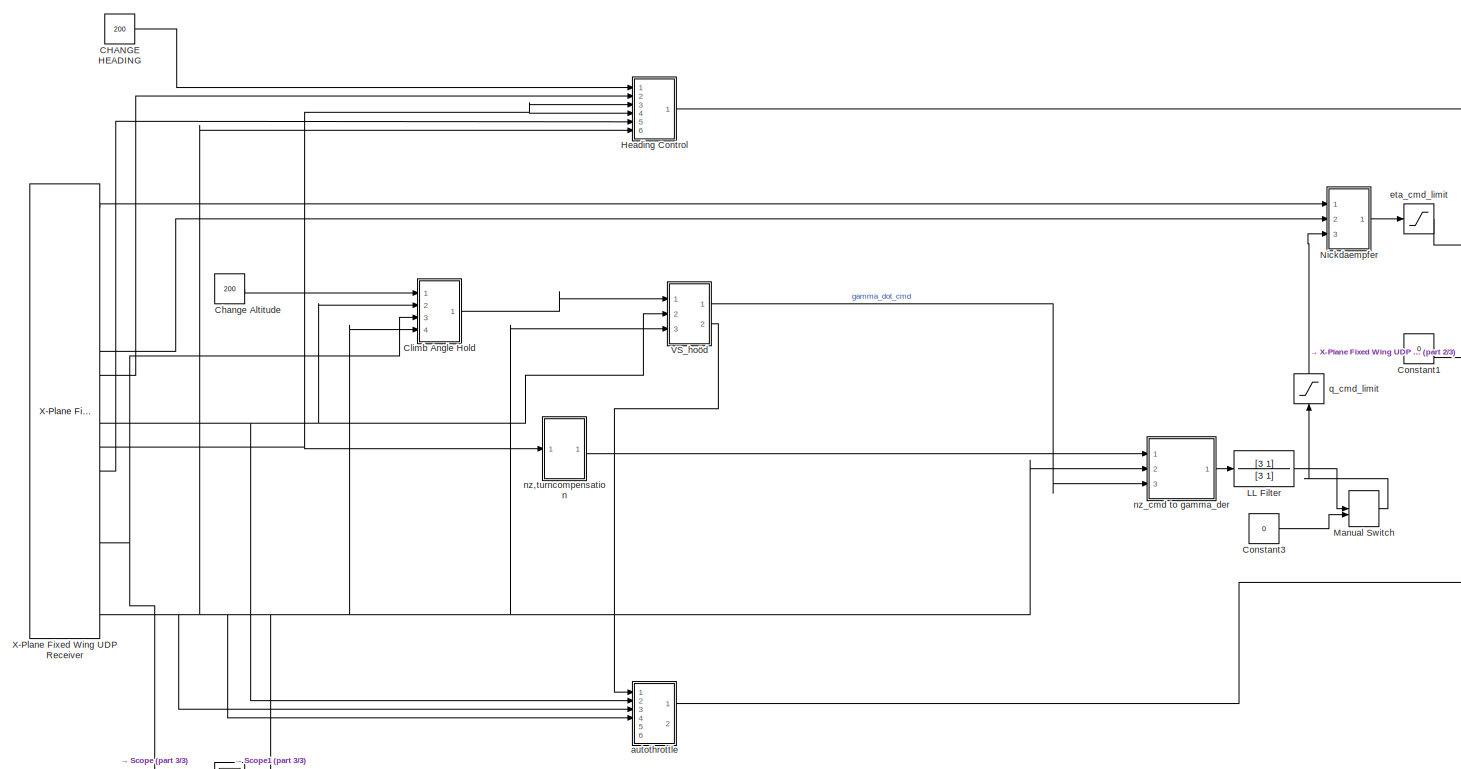
[diagram: root canvas - part 1/3, most of the canvas]
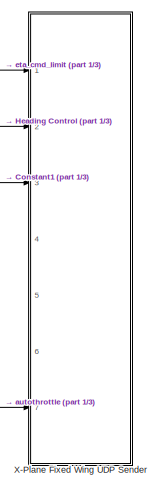
[diagram: root canvas - part 2/3, middle right region]
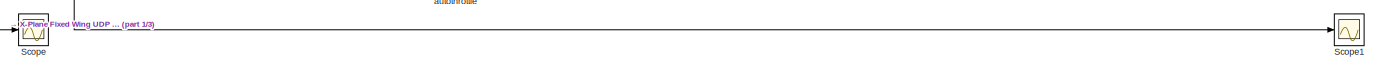
[diagram: root canvas - part 3/3, full width, bottom band]
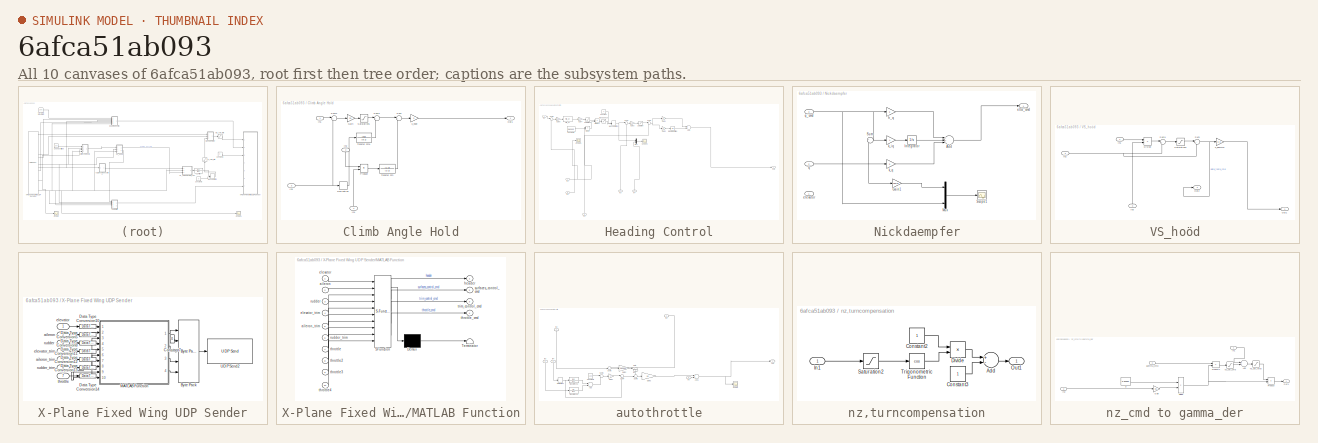
[diagram: thumbnail index - all 10 canvases of the model, root first then tree order]
MODEL slx_6afca51ab093
KIND model
CONFIG AbsTol = auto
CONFIG FixedStep = auto
CONFIG MaxStep = auto
CONFIG MinStep = auto
CONFIG RelTol = 1e-3
CONFIG SampleTimeConstraint = Unconstrained
CONFIG Solver = ode45
CONFIG SolverMode = Auto
CONFIG SolverName = ode45
CONFIG StartTime = 0.0
CONFIG StopTime = 1000.0
BLOCK [Constant] CHANGE HEADING
  Value = 200
BLOCK [Constant] Change Altitude
  Value = 200
BLOCK [SubSystem] Climb Angle Hold
  Ports = [4, 1]
  RequestExecContextInheritance = off
BLOCK [Derivative] Climb Angle Hold/Derivative
BLOCK [Gain] Climb Angle Hold/Gain
  Gain = 20
  OutDataTypeStr = Inherit: Inherit via internal rule
  ParamDataTypeStr = Inherit: Inherit via internal rule
  SaturateOnIntegerOverflow = off
BLOCK [Inport] Climb Angle Hold/In1
  IconDisplay = Port number
BLOCK [Inport] Climb Angle Hold/In2
  IconDisplay = Port number
  Port = 2
BLOCK [Inport] Climb Angle Hold/In3
  IconDisplay = Port number
  Port = 3
BLOCK [Inport] Climb Angle Hold/In4
  IconDisplay = Port number
  Port = 4
BLOCK [Outport] Climb Angle Hold/Out1
  IconDisplay = Port number
BLOCK [Product] Climb Angle Hold/Product
  InputSameDT = off
  OutDataTypeStr = Inherit: Inherit via internal rule
  Ports = [2, 1]
  RndMeth = Floor
  SaturateOnIntegerOverflow = off
BLOCK [Saturate] Climb Angle Hold/Saturation1
  InputPortMap = u0
  LowerLimit = -300
  Ports = [1, 1]
  UpperLimit = 300
BLOCK [Sum] Climb Angle Hold/Sum
  IconShape = round
  InputSameDT = off
  Inputs = |+-
  OutDataTypeStr = Inherit: Inherit via internal rule
  Ports = [2, 1]
  SaturateOnIntegerOverflow = off
BLOCK [Sum] Climb Angle Hold/Sum1
  IconShape = round
  InputSameDT = off
  Inputs = |+-
  OutDataTypeStr = Inherit: Inherit via internal rule
  Ports = [2, 1]
  SaturateOnIntegerOverflow = off
BLOCK [Sum] Climb Angle Hold/Sum2
  IconShape = round
  InputSameDT = off
  Inputs = |+-
  OutDataTypeStr = Inherit: Inherit via internal rule
  Ports = [2, 1]
  SaturateOnIntegerOverflow = off
BLOCK [TransferFcn] Climb Angle Hold/Transfer Fcn
  Denominator = [3 1]
  Numerator = [1 0]
BLOCK [TransferFcn] Climb Angle Hold/Transfer Fcn1
  Denominator = [8 1]
  Numerator = [60]
BLOCK [Gain] Climb Angle Hold/k_hdot
  Gain = 3
  OutDataTypeStr = Inherit: Inherit via internal rule
  ParamDataTypeStr = Inherit: Inherit via internal rule
  SaturateOnIntegerOverflow = off
BLOCK [Constant] Constant1
  Value = 0
BLOCK [Constant] Constant3
  Value = 0
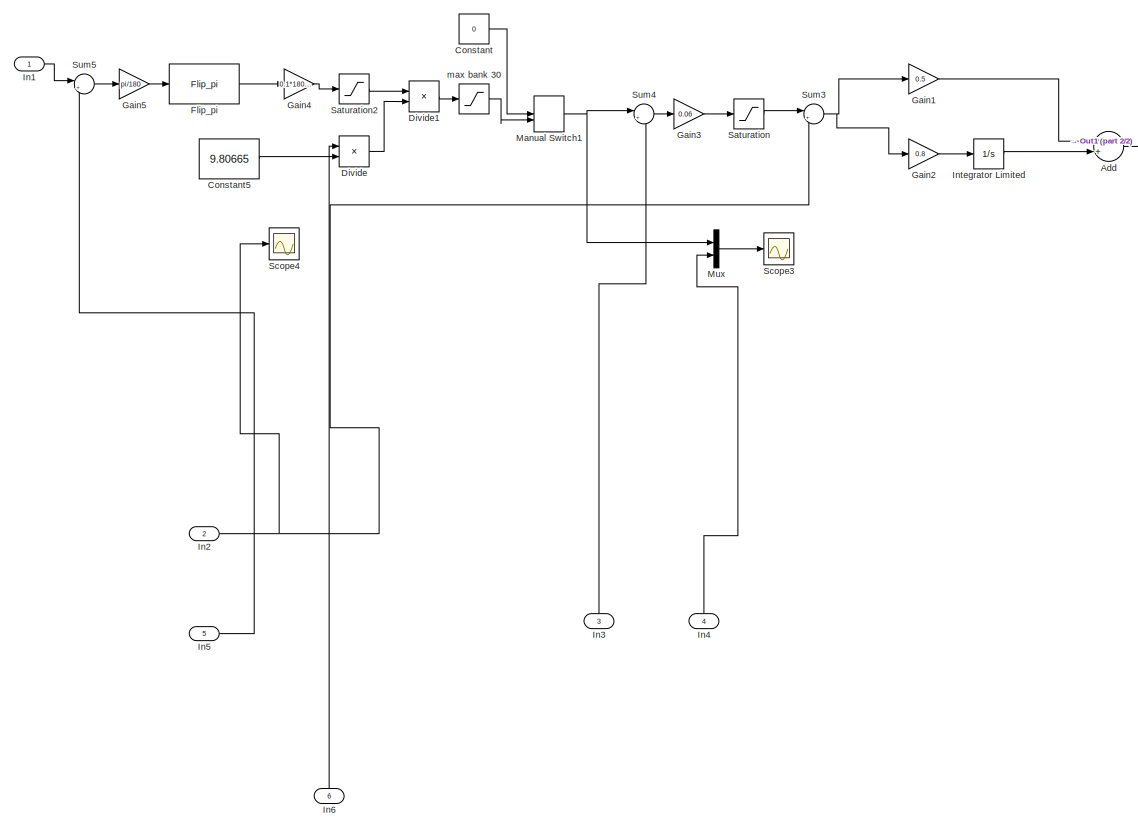
[diagram: Heading Control - part 1/2, left side, full height]
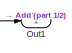
[diagram: Heading Control - part 2/2, middle right region]
BLOCK [SubSystem] Heading Control
  Ports = [6, 1]
  RequestExecContextInheritance = off
BLOCK [Sum] Heading Control/Add
  InputSameDT = off
  OutDataTypeStr = Inherit: Inherit via internal rule
  Ports = [2, 1]
  SaturateOnIntegerOverflow = off
BLOCK [Constant] Heading Control/Constant
  Value = 0
BLOCK [Constant] Heading Control/Constant5
  Value = 9.80665
BLOCK [Product] Heading Control/Divide
  InputSameDT = off
  Inputs = */
  OutDataTypeStr = Inherit: Inherit via internal rule
  Ports = [2, 1]
  RndMeth = Floor
  SaturateOnIntegerOverflow = off
BLOCK [Product] Heading Control/Divide1
  InputSameDT = off
  Inputs = **
  OutDataTypeStr = Inherit: Inherit via internal rule
  Ports = [2, 1]
  RndMeth = Floor
  SaturateOnIntegerOverflow = off
BLOCK [Reference] Heading Control/Flip_pi  REF=FSD_Custom_BASE/Flip_pi
  Ports = [1, 1]
  SourceBlock = FSD_Custom_BASE/Flip_pi
  SourceType = Flip -pi to pi
BLOCK [Gain] Heading Control/Gain1
  Gain = 0.5
  OutDataTypeStr = Inherit: Inherit via internal rule
  ParamDataTypeStr = Inherit: Inherit via internal rule
  SaturateOnIntegerOverflow = off
BLOCK [Gain] Heading Control/Gain2
  Gain = 0.8
  OutDataTypeStr = Inherit: Inherit via internal rule
  ParamDataTypeStr = Inherit: Inherit via internal rule
  SaturateOnIntegerOverflow = off
BLOCK [Gain] Heading Control/Gain3
  Gain = 0.06
  OutDataTypeStr = Inherit: Inherit via internal rule
  ParamDataTypeStr = Inherit: Inherit via internal rule
  SaturateOnIntegerOverflow = off
BLOCK [Gain] Heading Control/Gain4
  Gain = 0.1*180/pi
  OutDataTypeStr = Inherit: Inherit via internal rule
  ParamDataTypeStr = Inherit: Inherit via internal rule
  SaturateOnIntegerOverflow = off
BLOCK [Gain] Heading Control/Gain5
  Gain = pi/180
  OutDataTypeStr = Inherit: Inherit via internal rule
  ParamDataTypeStr = Inherit: Inherit via internal rule
  SaturateOnIntegerOverflow = off
BLOCK [Inport] Heading Control/In1
  IconDisplay = Port number
BLOCK [Inport] Heading Control/In2
  IconDisplay = Port number
  Port = 2
BLOCK [Inport] Heading Control/In3
  IconDisplay = Port number
  Port = 3
BLOCK [Inport] Heading Control/In4
  IconDisplay = Port number
  Port = 4
BLOCK [Inport] Heading Control/In5
  IconDisplay = Port number
  Port = 5
BLOCK [Inport] Heading Control/In6
  IconDisplay = Port number
  Port = 6
BLOCK [Integrator] Heading Control/Integrator Limited
  LimitOutput = on
  LowerSaturationLimit = -0.7
  Ports = [1, 1]
  UpperSaturationLimit = 0.7
BLOCK [ManualSwitch] Heading Control/Manual Switch1
  CurrentSetting = 0
BLOCK [Mux] Heading Control/Mux
  DisplayOption = bar
  Inputs = 2
  Ports = [2, 1]
BLOCK [Outport] Heading Control/Out1
  IconDisplay = Port number
BLOCK [Saturate] Heading Control/Saturation
  InputPortMap = u0
  LowerLimit = -4
  Ports = [1, 1]
  UpperLimit = 4
BLOCK [Saturate] Heading Control/Saturation2
  InputPortMap = u0
  LowerLimit = -3
  Ports = [1, 1]
  UpperLimit = 3
BLOCK [Scope] Heading Control/Scope3
  Floating = off
  NumInputPorts = 1
  Ports = [1]
  SaveName = ScopeData5
  YMax = 50
  YMin = 0
BLOCK [Scope] Heading Control/Scope4
  Floating = off
  NumInputPorts = 1
  Ports = [1]
  SaveName = ScopeData6
  YMax = 0.07
  YMin = -0.01
BLOCK [Sum] Heading Control/Sum3
  IconShape = round
  InputSameDT = off
  Inputs = |+-
  OutDataTypeStr = Inherit: Inherit via internal rule
  Ports = [2, 1]
  SaturateOnIntegerOverflow = off
BLOCK [Sum] Heading Control/Sum4
  IconShape = round
  InputSameDT = off
  Inputs = |+-
  OutDataTypeStr = Inherit: Inherit via internal rule
  Ports = [2, 1]
  SaturateOnIntegerOverflow = off
BLOCK [Sum] Heading Control/Sum5
  IconShape = round
  InputSameDT = off
  Inputs = |+-
  OutDataTypeStr = Inherit: Inherit via internal rule
  Ports = [2, 1]
  SaturateOnIntegerOverflow = off
BLOCK [Saturate] Heading Control/max bank 30
  InputPortMap = u0
  LowerLimit = -30
  Ports = [1, 1]
  UpperLimit = 30
BLOCK [TransferFcn] LL Filter
  Denominator = [3 1]
  Numerator = [3 1]
BLOCK [ManualSwitch] Manual Switch
BLOCK [SubSystem] Nickdaempfer
  Ports = [3, 1]
  RequestExecContextInheritance = off
BLOCK [Sum] Nickdaempfer/Add
  InputSameDT = off
  Inputs = ++-
  OutDataTypeStr = Inherit: Inherit via internal rule
  Ports = [3, 1]
  SaturateOnIntegerOverflow = off
BLOCK [Gain] Nickdaempfer/Gain1
  Gain = 180/pi
  OutDataTypeStr = Inherit: Inherit via internal rule
  ParamDataTypeStr = Inherit: Inherit via internal rule
  SaturateOnIntegerOverflow = off
BLOCK [Integrator] Nickdaempfer/Integrator
  Ports = [1, 1]
BLOCK [Mux] Nickdaempfer/Mux
  DisplayOption = bar
  Ports = [4, 1]
BLOCK [Scope] Nickdaempfer/Scope1
  Floating = off
  NumInputPorts = 1
  Ports = [1]
  TimeRange = 100
  YMax = 3.5
  YMin = -4.5
BLOCK [Sum] Nickdaempfer/Sum
  IconShape = round
  InputSameDT = off
  Inputs = +|-
  OutDataTypeStr = Inherit: Inherit via internal rule
  Ports = [2, 1]
  SaturateOnIntegerOverflow = off
BLOCK [Inport] Nickdaempfer/elevator
  IconDisplay = Port number
BLOCK [Outport] Nickdaempfer/etta_cmd 
  IconDisplay = Port number
BLOCK [Gain] Nickdaempfer/h_q
  Gain = 6
  OutDataTypeStr = Inherit: Inherit via internal rule
  ParamDataTypeStr = Inherit: Inherit via internal rule
  SaturateOnIntegerOverflow = off
BLOCK [Gain] Nickdaempfer/k_iq
  Gain = 4
  OutDataTypeStr = Inherit: Inherit via internal rule
  ParamDataTypeStr = Inherit: Inherit via internal rule
  SaturateOnIntegerOverflow = off
BLOCK [Gain] Nickdaempfer/k_q
  Gain = 3
  OutDataTypeStr = Inherit: Inherit via internal rule
  ParamDataTypeStr = Inherit: Inherit via internal rule
  SaturateOnIntegerOverflow = off
BLOCK [Inport] Nickdaempfer/q
  IconDisplay = Port number
  Port = 2
BLOCK [Inport] Nickdaempfer/q_cmd
  IconDisplay = Port number
  Port = 3
BLOCK [Scope] Scope
  Floating = off
  NumInputPorts = 1
  Ports = [1]
  SaveName = ScopeData2
  YMax = 4500
  YMin = 0
BLOCK [Scope] Scope1
  Floating = off
  NumInputPorts = 1
  Ports = [1]
  SaveName = ScopeData3
  YMax = 130
  YMin = 90
BLOCK [SubSystem] VS_hoöd
  Ports = [3, 2]
  RequestExecContextInheritance = off
BLOCK [Product] VS_hoöd/Divide
  InputSameDT = off
  Inputs = */
  OutDataTypeStr = Inherit: Inherit via internal rule
  Ports = [2, 1]
  RndMeth = Floor
  SaturateOnIntegerOverflow = off
BLOCK [Inport] VS_hoöd/In1
  IconDisplay = Port number
BLOCK [Inport] VS_hoöd/In2
  IconDisplay = Port number
  Port = 2
BLOCK [Inport] VS_hoöd/In3
  IconDisplay = Port number
  Port = 3
BLOCK [Outport] VS_hoöd/Out1
  IconDisplay = Port number
BLOCK [Outport] VS_hoöd/Out2
  IconDisplay = Port number
  Port = 2
BLOCK [Saturate] VS_hoöd/Saturation1
  InputPortMap = u0
  LowerLimit = -15
  Ports = [1, 1]
  UpperLimit = 6
BLOCK [Sum] VS_hoöd/Sum
  IconShape = round
  InputSameDT = off
  Inputs = |+-
  OutDataTypeStr = Inherit: Inherit via internal rule
  Ports = [2, 1]
  SaturateOnIntegerOverflow = off
BLOCK [Sum] VS_hoöd/Sum1
  IconShape = round
  InputSameDT = off
  Inputs = |++
  OutDataTypeStr = Inherit: Inherit via internal rule
  Ports = [2, 1]
  SaturateOnIntegerOverflow = off
BLOCK [Gain] VS_hoöd/k_gamma
  Gain = 0.3
  OutDataTypeStr = Inherit: Inherit via internal rule
  ParamDataTypeStr = Inherit: Inherit via internal rule
  SaturateOnIntegerOverflow = off
BLOCK [Reference] X-Plane Fixed Wing UDP Receiver  REF=X_Plane_Communication_Library/Fixed Wing/X-Plane Fixed Wing UDP Receiver
  Ports = [0, 18]
  SourceBlock = X_Plane_Communication_Library/Fixed Wing/X-Plane Fixed Wing UDP Receiver
  ip_adress = '127.0.0.1'
  port_number = 49004
BLOCK [SubSystem] X-Plane Fixed Wing UDP Sender
  AncestorBlock = X_Plane_Communication_Library/Fixed Wing/X-Plane Fixed Wing UDP Sender
  Ports = [7]
  RequestExecContextInheritance = off
BLOCK [Reference] X-Plane Fixed Wing UDP Sender/Byte Pack  REF=etargetslib/Byte Pack
  Ports = [5, 1]
  SourceBlock = etargetslib/Byte Pack
  SourceType = Byte pack
  byteAlign = 1
  datatypes = {'single','uint8','single','single','single'}
BLOCK [Constant] X-Plane Fixed Wing UDP Sender/Constant7
  OutDataTypeStr = uint8
  Value = 0
BLOCK [DataTypeConversion] X-Plane Fixed Wing UDP Sender/Data Type Conversion10
  OutDataTypeStr = single
  RndMeth = Floor
BLOCK [DataTypeConversion] X-Plane Fixed Wing UDP Sender/Data Type Conversion11
  OutDataTypeStr = single
  RndMeth = Floor
BLOCK [DataTypeConversion] X-Plane Fixed Wing UDP Sender/Data Type Conversion12
  OutDataTypeStr = single
  RndMeth = Floor
BLOCK [DataTypeConversion] X-Plane Fixed Wing UDP Sender/Data Type Conversion13
  OutDataTypeStr = single
  RndMeth = Floor
BLOCK [DataTypeConversion] X-Plane Fixed Wing UDP Sender/Data Type Conversion14
  OutDataTypeStr = single
  RndMeth = Floor
BLOCK [DataTypeConversion] X-Plane Fixed Wing UDP Sender/Data Type Conversion5
  OutDataTypeStr = single
  RndMeth = Floor
BLOCK [DataTypeConversion] X-Plane Fixed Wing UDP Sender/Data Type Conversion8
  OutDataTypeStr = single
  RndMeth = Floor
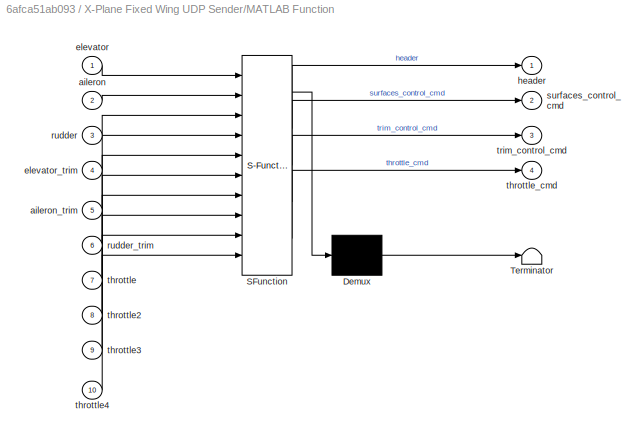
BLOCK [SubSystem] X-Plane Fixed Wing UDP Sender/MATLAB Function
  ErrorFcn = Stateflow.Translate.translate
  PermitHierarchicalResolution = ExplicitOnly
  Ports = [10, 4]
  RequestExecContextInheritance = off
  SFBlockType = MATLAB Function
  TreatAsAtomicUnit = on
BLOCK [Demux] X-Plane Fixed Wing UDP Sender/MATLAB Function/ Demux 
  Outputs = 1
  Ports = [1, 1]
BLOCK [S-Function] X-Plane Fixed Wing UDP Sender/MATLAB Function/ SFunction 
  EnableBusSupport = on
  FunctionName = sf_sfun
  PortCounts = [10 5]
  Ports = [10, 5]
  Tag = Stateflow S-Function autopilotstef_ALTITUDE_HOLD 4
BLOCK [Terminator] X-Plane Fixed Wing UDP Sender/MATLAB Function/ Terminator 
BLOCK [Inport] X-Plane Fixed Wing UDP Sender/MATLAB Function/aileron
  IconDisplay = Port number
  Port = 2
BLOCK [Inport] X-Plane Fixed Wing UDP Sender/MATLAB Function/aileron_trim
  IconDisplay = Port number
  Port = 5
BLOCK [Inport] X-Plane Fixed Wing UDP Sender/MATLAB Function/elevator
  IconDisplay = Port number
BLOCK [Inport] X-Plane Fixed Wing UDP Sender/MATLAB Function/elevator_trim
  IconDisplay = Port number
  Port = 4
BLOCK [Outport] X-Plane Fixed Wing UDP Sender/MATLAB Function/header
  IconDisplay = Port number
BLOCK [Inport] X-Plane Fixed Wing UDP Sender/MATLAB Function/rudder
  IconDisplay = Port number
  Port = 3
BLOCK [Inport] X-Plane Fixed Wing UDP Sender/MATLAB Function/rudder_trim
  IconDisplay = Port number
  Port = 6
BLOCK [Outport] X-Plane Fixed Wing UDP Sender/MATLAB Function/surfaces_control_cmd
  IconDisplay = Port number
  Port = 2
BLOCK [Inport] X-Plane Fixed Wing UDP Sender/MATLAB Function/throttle
  IconDisplay = Port number
  Port = 7
BLOCK [Inport] X-Plane Fixed Wing UDP Sender/MATLAB Function/throttle2
  IconDisplay = Port number
  Port = 8
BLOCK [Inport] X-Plane Fixed Wing UDP Sender/MATLAB Function/throttle3
  IconDisplay = Port number
  Port = 9
BLOCK [Inport] X-Plane Fixed Wing UDP Sender/MATLAB Function/throttle4
  IconDisplay = Port number
  Port = 10
BLOCK [Outport] X-Plane Fixed Wing UDP Sender/MATLAB Function/throttle_cmd
  IconDisplay = Port number
  Port = 4
BLOCK [Outport] X-Plane Fixed Wing UDP Sender/MATLAB Function/trim_control_cmd
  IconDisplay = Port number
  Port = 3
BLOCK [Reference] X-Plane Fixed Wing UDP Sender/UDP Send2  REF=dspnetwork/UDP Send
  Ports = [1]
  SourceBlock = dspnetwork/UDP Send
  SourceType = UDP Send
  blockPlatform = HOST
  localPort = -1
  localPortSource = Automatically determine
  localURL = '255.255.255.255'
  remotePort = port_number
  remoteURL = ip_adress
  sampletime = -1
  separateLengthPort = 0
BLOCK [Inport] X-Plane Fixed Wing UDP Sender/aileron
  IconDisplay = Port number
  Port = 2
BLOCK [Inport] X-Plane Fixed Wing UDP Sender/aileron_trim
  IconDisplay = Port number
  Port = 5
BLOCK [Inport] X-Plane Fixed Wing UDP Sender/elevator
  IconDisplay = Port number
BLOCK [Inport] X-Plane Fixed Wing UDP Sender/elevator_trim
  IconDisplay = Port number
  Port = 4
BLOCK [Inport] X-Plane Fixed Wing UDP Sender/rudder
  IconDisplay = Port number
  Port = 3
BLOCK [Inport] X-Plane Fixed Wing UDP Sender/rudder_trim
  IconDisplay = Port number
  Port = 6
BLOCK [Inport] X-Plane Fixed Wing UDP Sender/throttle
  IconDisplay = Port number
  Port = 7
BLOCK [SubSystem] autothrottle
  Ports = [6, 2]
  RequestExecContextInheritance = off
BLOCK [Sum] autothrottle/Add
  InputSameDT = off
  OutDataTypeStr = Inherit: Inherit via internal rule
  Ports = [2, 1]
  SaturateOnIntegerOverflow = off
BLOCK [Sum] autothrottle/Add1
  InputSameDT = off
  OutDataTypeStr = Inherit: Inherit via internal rule
  Ports = [2, 1]
  SaturateOnIntegerOverflow = off
BLOCK [Constant] autothrottle/Constant3
  Value = 100
BLOCK [Derivative] autothrottle/Derivative1
BLOCK [Gain] autothrottle/Gain1
  OutDataTypeStr = Inherit: Inherit via internal rule
  ParamDataTypeStr = Inherit: Inherit via internal rule
  SaturateOnIntegerOverflow = off
BLOCK [Gain] autothrottle/Gain2
  Gain = 9.80665
  OutDataTypeStr = Inherit: Inherit via internal rule
  ParamDataTypeStr = Inherit: Inherit via internal rule
  SaturateOnIntegerOverflow = off
BLOCK [Gain] autothrottle/Gain3
  Gain = 10
  OutDataTypeStr = Inherit: Inherit via internal rule
  ParamDataTypeStr = Inherit: Inherit via internal rule
  SaturateOnIntegerOverflow = off
BLOCK [Inport] autothrottle/In1
  IconDisplay = Port number
BLOCK [Inport] autothrottle/In2
  IconDisplay = Port number
  Port = 2
BLOCK [Inport] autothrottle/In3
  IconDisplay = Port number
  Port = 3
BLOCK [Inport] autothrottle/In4
  IconDisplay = Port number
  Port = 4
BLOCK [Inport] autothrottle/In5
  IconDisplay = Port number
  Port = 5
BLOCK [Inport] autothrottle/In6
  IconDisplay = Port number
  Port = 6
BLOCK [Outport] autothrottle/Out1
  IconDisplay = Port number
BLOCK [Outport] autothrottle/Out2
  IconDisplay = Port number
  Port = 2
BLOCK [Scope] autothrottle/Scope
  Floating = off
  NumInputPorts = 1
  Ports = [1]
  SaveName = ScopeData1
  YMax = 32.5
  YMin = -10
BLOCK [Sum] autothrottle/Sum3
  IconShape = round
  InputSameDT = off
  Inputs = |+-
  OutDataTypeStr = Inherit: Inherit via internal rule
  Ports = [2, 1]
  SaturateOnIntegerOverflow = off
BLOCK [Sum] autothrottle/Sum4
  IconShape = round
  InputSameDT = off
  Inputs = |+-
  OutDataTypeStr = Inherit: Inherit via internal rule
  Ports = [2, 1]
  SaturateOnIntegerOverflow = off
BLOCK [Sum] autothrottle/Sum5
  IconShape = round
  InputSameDT = off
  Inputs = ++|
  OutDataTypeStr = Inherit: Inherit via internal rule
  Ports = [2, 1]
  SaturateOnIntegerOverflow = off
BLOCK [Sum] autothrottle/Sum6
  IconShape = round
  InputSameDT = off
  Inputs = +-|
  OutDataTypeStr = Inherit: Inherit via internal rule
  Ports = [2, 1]
  SaturateOnIntegerOverflow = off
BLOCK [TransferFcn] autothrottle/Transfer Fcn2
  Denominator = [1 1]
  Numerator = [1 0]
BLOCK [TransferFcn] autothrottle/Transfer Fcn3
  Denominator = [1 1]
BLOCK [Saturate] eta_cmd_limit
  InputPortMap = u0
  LowerLimit = -0.2
  Ports = [1, 1]
  UpperLimit = 0.2
BLOCK [SubSystem] nz,turncompensation
  Ports = [1, 1]
  RequestExecContextInheritance = off
BLOCK [Sum] nz,turncompensation/Add
  InputSameDT = off
  Inputs = +-
  OutDataTypeStr = Inherit: Inherit via internal rule
  Ports = [2, 1]
  SaturateOnIntegerOverflow = off
BLOCK [Constant] nz,turncompensation/Constant2
BLOCK [Constant] nz,turncompensation/Constant3
BLOCK [Product] nz,turncompensation/Divide
  InputSameDT = off
  Inputs = */
  OutDataTypeStr = Inherit: Inherit via internal rule
  Ports = [2, 1]
  RndMeth = Floor
  SaturateOnIntegerOverflow = off
BLOCK [Inport] nz,turncompensation/In1
  IconDisplay = Port number
BLOCK [Outport] nz,turncompensation/Out1
  IconDisplay = Port number
BLOCK [Saturate] nz,turncompensation/Saturation2
  InputPortMap = u0
  LowerLimit = -30*pi/180
  Ports = [1, 1]
  UpperLimit = 30*pi/180
BLOCK [Trigonometry] nz,turncompensation/Trigonometric Function
  Operator = cos
  Ports = [1, 1]
BLOCK [SubSystem] nz_cmd to gamma_der
  Ports = [3, 1]
  RequestExecContextInheritance = off
BLOCK [Sum] nz_cmd to gamma_der/Add
  InputSameDT = off
  OutDataTypeStr = Inherit: Inherit via internal rule
  Ports = [2, 1]
  SaturateOnIntegerOverflow = off
BLOCK [Product] nz_cmd to gamma_der/Divide
  InputSameDT = off
  Inputs = */
  OutDataTypeStr = Inherit: Inherit via internal rule
  Ports = [2, 1]
  RndMeth = Floor
  SaturateOnIntegerOverflow = off
BLOCK [Gain] nz_cmd to gamma_der/Gain
  Gain = 0.5
  OutDataTypeStr = Inherit: Inherit via internal rule
  ParamDataTypeStr = Inherit: Inherit via internal rule
  SaturateOnIntegerOverflow = off
BLOCK [Inport] nz_cmd to gamma_der/In1
  IconDisplay = Port number
BLOCK [Inport] nz_cmd to gamma_der/In2
  IconDisplay = Port number
  Port = 2
BLOCK [Outport] nz_cmd to gamma_der/Out1
  IconDisplay = Port number
BLOCK [Product] nz_cmd to gamma_der/Product
  InputSameDT = off
  OutDataTypeStr = Inherit: Inherit via internal rule
  Ports = [2, 1]
  RndMeth = Floor
  SaturateOnIntegerOverflow = off
BLOCK [Product] nz_cmd to gamma_der/Product1
  InputSameDT = off
  OutDataTypeStr = Inherit: Inherit via internal rule
  Ports = [2, 1]
  RndMeth = Floor
  SaturateOnIntegerOverflow = off
BLOCK [Constant] nz_cmd to gamma_der/g 
  Value = 9.80665
BLOCK [Inport] nz_cmd to gamma_der/gamma_cmd 
  IconDisplay = Port number
  Port = 3
BLOCK [Saturate] nz_cmd to gamma_der/nz_sat_cmd
  InputPortMap = u0
  LowerLimit = -2
  Ports = [1, 1]
  UpperLimit = 2
BLOCK [Saturate] nz_cmd to gamma_der/nz_sat_total
  InputPortMap = u0
  LowerLimit = -4
  Ports = [1, 1]
  UpperLimit = 4
BLOCK [Saturate] q_cmd_limit
  InputPortMap = u0
  LowerLimit = -15*pi/180
  Ports = [1, 1]
  UpperLimit = 15*pi/180
LINE CHANGE HEADING:1 -> Heading Control:1
LINE Change Altitude:1 -> Climb Angle Hold:1
LINE Climb Angle Hold/Derivative:1 -> Climb Angle Hold/Transfer Fcn1:1
LINE Climb Angle Hold/Gain:1 -> Climb Angle Hold/Saturation1:1
LINE Climb Angle Hold/In1:1 -> Climb Angle Hold/Sum2:1
LINE Climb Angle Hold/In2:1 -> Climb Angle Hold/Product:1
NET Climb Angle Hold/In3:1 -> Climb Angle Hold/Derivative:1, Climb Angle Hold/Sum2:2
LINE Climb Angle Hold/In4:1 -> Climb Angle Hold/Product:2
LINE Climb Angle Hold/Product:1 -> Climb Angle Hold/Transfer Fcn:1
LINE Climb Angle Hold/Saturation1:1 -> Climb Angle Hold/Sum1:1
LINE Climb Angle Hold/Sum1:1 -> Climb Angle Hold/Sum:1
LINE Climb Angle Hold/Sum2:1 -> Climb Angle Hold/Gain:1
LINE Climb Angle Hold/Sum:1 -> Climb Angle Hold/k_hdot:1
LINE Climb Angle Hold/Transfer Fcn1:1 -> Climb Angle Hold/Sum1:2
LINE Climb Angle Hold/Transfer Fcn:1 -> Climb Angle Hold/Sum:2
LINE Climb Angle Hold/k_hdot:1 -> Climb Angle Hold/Out1:1
LINE Climb Angle Hold:1 -> VS_hoöd:1
LINE Constant1:1 -> X-Plane Fixed Wing UDP Sender:3
LINE Constant3:1 -> Manual Switch:2
LINE Heading Control/Add:1 -> Heading Control/Out1:1
LINE Heading Control/Constant5:1 -> Heading Control/Divide:2
LINE Heading Control/Constant:1 -> Heading Control/Manual Switch1:1
LINE Heading Control/Divide1:1 -> Heading Control/max bank 30:1
LINE Heading Control/Divide:1 -> Heading Control/Divide1:2
LINE Heading Control/Flip_pi:1 -> Heading Control/Gain4:1
LINE Heading Control/Gain1:1 -> Heading Control/Add:1
LINE Heading Control/Gain2:1 -> Heading Control/Integrator Limited:1
LINE Heading Control/Gain3:1 -> Heading Control/Saturation:1
LINE Heading Control/Gain4:1 -> Heading Control/Saturation2:1
LINE Heading Control/Gain5:1 -> Heading Control/Flip_pi:1
LINE Heading Control/In1:1 -> Heading Control/Sum5:1
NET Heading Control/In2:1 -> Heading Control/Scope4:1, Heading Control/Sum3:2
LINE Heading Control/In3:1 -> Heading Control/Sum4:2
LINE Heading Control/In4:1 -> Heading Control/Mux:2
LINE Heading Control/In5:1 -> Heading Control/Sum5:2
LINE Heading Control/In6:1 -> Heading Control/Divide:1
LINE Heading Control/Integrator Limited:1 -> Heading Control/Add:2
NET Heading Control/Manual Switch1:1 -> Heading Control/Mux:1, Heading Control/Sum4:1
LINE Heading Control/Mux:1 -> Heading Control/Scope3:1
LINE Heading Control/Saturation2:1 -> Heading Control/Divide1:1
LINE Heading Control/Saturation:1 -> Heading Control/Sum3:1
NET Heading Control/Sum3:1 -> Heading Control/Gain1:1, Heading Control/Gain2:1
LINE Heading Control/Sum4:1 -> Heading Control/Gain3:1
LINE Heading Control/Sum5:1 -> Heading Control/Gain5:1
LINE Heading Control/max bank 30:1 -> Heading Control/Manual Switch1:2
LINE Heading Control:1 -> X-Plane Fixed Wing UDP Sender:2
LINE LL Filter:1 -> Manual Switch:1
LINE Manual Switch:1 -> q_cmd_limit:1
LINE Nickdaempfer/Add:1 -> Nickdaempfer/etta_cmd :1
LINE Nickdaempfer/Gain1:1 -> Nickdaempfer/Mux:1
LINE Nickdaempfer/Integrator:1 -> Nickdaempfer/Add:2
LINE Nickdaempfer/Mux:1 -> Nickdaempfer/Scope1:1
LINE Nickdaempfer/Sum:1 -> Nickdaempfer/k_iq:1
LINE Nickdaempfer/h_q:1 -> Nickdaempfer/Add:1
LINE Nickdaempfer/k_iq:1 -> Nickdaempfer/Integrator:1
LINE Nickdaempfer/k_q:1 -> Nickdaempfer/Add:3
NET Nickdaempfer/q:1 -> Nickdaempfer/Gain1:1, Nickdaempfer/Sum:2, Nickdaempfer/k_q:1
NET Nickdaempfer/q_cmd:1 -> Nickdaempfer/Mux:4, Nickdaempfer/Sum:1, Nickdaempfer/h_q:1
LINE Nickdaempfer:1 -> eta_cmd_limit:1
LINE VS_hoöd/Divide:1 -> VS_hoöd/Sum1:1
LINE VS_hoöd/In1:1 -> VS_hoöd/Divide:1
NET VS_hoöd/In2:1 -> VS_hoöd/Sum1:2, VS_hoöd/Sum:2
LINE VS_hoöd/In3:1 -> VS_hoöd/Divide:2
LINE VS_hoöd/Saturation1:1 -> VS_hoöd/Sum:1
LINE VS_hoöd/Sum1:1 -> VS_hoöd/Saturation1:1
NET VS_hoöd/Sum:1 -> VS_hoöd/Out2:1, VS_hoöd/k_gamma:1
LINE VS_hoöd/k_gamma:1 -> VS_hoöd/Out1:1
LINE VS_hoöd:1 -> nz_cmd to gamma_der:3
LINE VS_hoöd:2 -> autothrottle:1
LINE X-Plane Fixed Wing UDP Receiver:1 -> Nickdaempfer:1
NET X-Plane Fixed Wing UDP Receiver:10 -> Climb Angle Hold:2, VS_hoöd:2, autothrottle:2
NET X-Plane Fixed Wing UDP Receiver:11 -> Heading Control:3, Heading Control:4, nz,turncompensation:1
LINE X-Plane Fixed Wing UDP Receiver:12 -> Heading Control:5
NET X-Plane Fixed Wing UDP Receiver:15 -> Climb Angle Hold:3, Scope:1
NET X-Plane Fixed Wing UDP Receiver:18 -> Climb Angle Hold:4, Heading Control:6, Scope1:1, VS_hoöd:3, autothrottle:3, autothrottle:4, nz_cmd to gamma_der:2
LINE X-Plane Fixed Wing UDP Receiver:7 -> Nickdaempfer:2
LINE X-Plane Fixed Wing UDP Receiver:8 -> Heading Control:2
NET autothrottle/Add1:1 -> autothrottle/Out1:1, autothrottle/Scope:1
LINE autothrottle/Add:1 -> autothrottle/Sum3:2
LINE autothrottle/Constant3:1 -> autothrottle/Sum3:1
NET autothrottle/Derivative1:1 -> autothrottle/Sum4:2, autothrottle/Transfer Fcn2:1
LINE autothrottle/Gain1:1 -> autothrottle/Sum4:1
LINE autothrottle/Gain2:1 -> autothrottle/Out2:1
LINE autothrottle/Gain3:1 -> autothrottle/Add1:1
LINE autothrottle/In1:1 -> autothrottle/Sum6:1
LINE autothrottle/In2:1 -> autothrottle/Sum6:2
LINE autothrottle/In3:1 -> autothrottle/Transfer Fcn3:1
LINE autothrottle/In4:1 -> autothrottle/Derivative1:1
LINE autothrottle/In5:1 -> autothrottle/Sum5:1
LINE autothrottle/In6:1 -> autothrottle/Add1:2
LINE autothrottle/Sum3:1 -> autothrottle/Gain1:1
LINE autothrottle/Sum4:1 -> autothrottle/Sum5:2
LINE autothrottle/Sum5:1 -> autothrottle/Gain3:1
LINE autothrottle/Sum6:1 -> autothrottle/Gain2:1
LINE autothrottle/Transfer Fcn2:1 -> autothrottle/Add:1
LINE autothrottle/Transfer Fcn3:1 -> autothrottle/Add:2
LINE autothrottle:1 -> X-Plane Fixed Wing UDP Sender:7
LINE eta_cmd_limit:1 -> X-Plane Fixed Wing UDP Sender:1
LINE nz,turncompensation/Add:1 -> nz,turncompensation/Out1:1
LINE nz,turncompensation/Constant2:1 -> nz,turncompensation/Divide:1
LINE nz,turncompensation/Constant3:1 -> nz,turncompensation/Add:2
LINE nz,turncompensation/Divide:1 -> nz,turncompensation/Add:1
LINE nz,turncompensation/In1:1 -> nz,turncompensation/Saturation2:1
LINE nz,turncompensation/Saturation2:1 -> nz,turncompensation/Trigonometric Function:1
LINE nz,turncompensation/Trigonometric Function:1 -> nz,turncompensation/Divide:2
LINE nz,turncompensation:1 -> nz_cmd to gamma_der:1
LINE nz_cmd to gamma_der/Add:1 -> nz_cmd to gamma_der/nz_sat_total:1
NET nz_cmd to gamma_der/Divide:1 -> nz_cmd to gamma_der/Product1:2, nz_cmd to gamma_der/Product:2
LINE nz_cmd to gamma_der/Gain:1 -> nz_cmd to gamma_der/Divide:2
LINE nz_cmd to gamma_der/In1:1 -> nz_cmd to gamma_der/Add:1
LINE nz_cmd to gamma_der/In2:1 -> nz_cmd to gamma_der/Gain:1
LINE nz_cmd to gamma_der/Product1:1 -> nz_cmd to gamma_der/nz_sat_cmd:1
LINE nz_cmd to gamma_der/Product:1 -> nz_cmd to gamma_der/Out1:1
LINE nz_cmd to gamma_der/g :1 -> nz_cmd to gamma_der/Divide:1
LINE nz_cmd to gamma_der/gamma_cmd :1 -> nz_cmd to gamma_der/Product1:1
LINE nz_cmd to gamma_der/nz_sat_cmd:1 -> nz_cmd to gamma_der/Add:2
LINE nz_cmd to gamma_der/nz_sat_total:1 -> nz_cmd to gamma_der/Product:1
LINE nz_cmd to gamma_der:1 -> LL Filter:1
LINE q_cmd_limit:1 -> Nickdaempfer:3
note: NET lines group one-source signal fan-out (src -> all destinations, sorted); 1:1 wires keep LINE
CHART X-Plane Fixed Wing UDP Sender/MATLAB Function states=1 transitions=1
  STATE_LABEL 'eML_blk_kernel()'
  STATE_LABEL "SCRIPT:\nfunction [header, surfaces_control_cmd,trim_control_cmd, throttle_cmd]  = fcn(elevator, aileron, rudder, elevator_trim, aileron_trim, rudder_trim, throttle, throttle2, throttle3, throttle4)\n% This block supports the Embedded MATLAB subset.\n% See the help menu for details. \n\nheader = typecast(uint8([uint8(68) uint8(65) uint8(84) uint8(65)]), 'single');\n\n\n\nNo_Comand = single(-999);\n\nSurface_...<+1490ch>"
